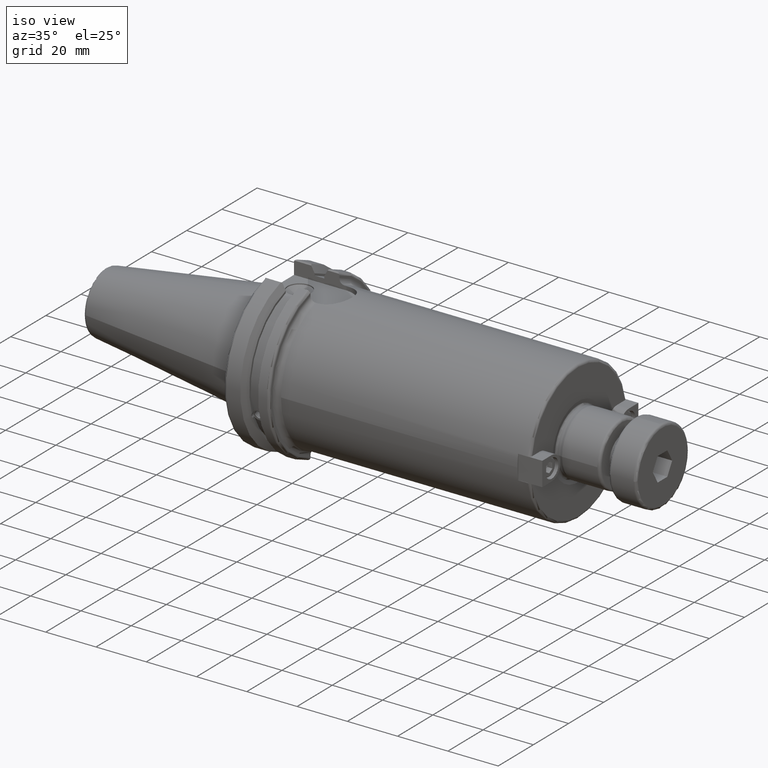
[diagram: clean part render]
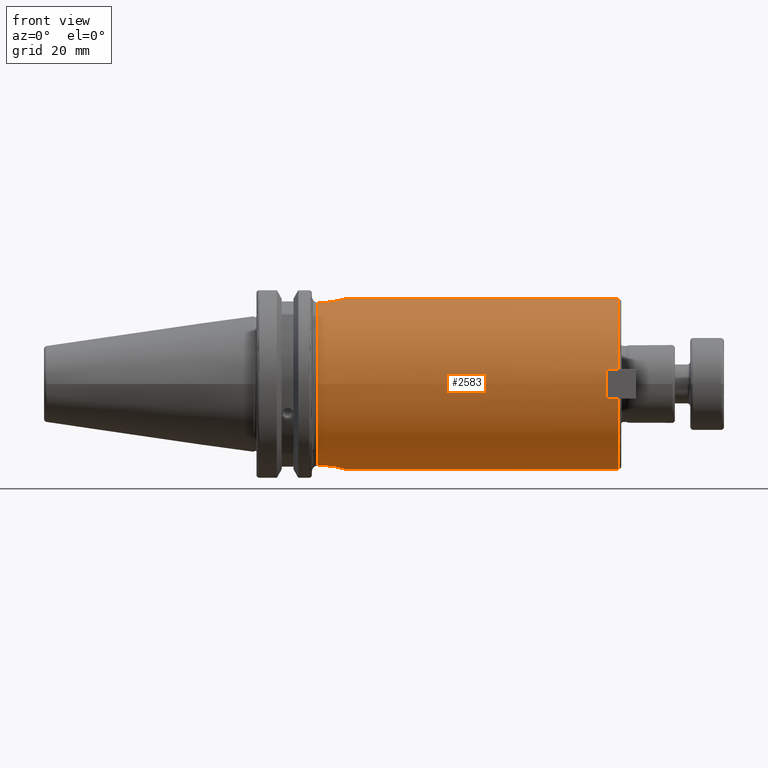
[diagram: tour spotlight — one face highlighted and labeled with its STEP entity id]
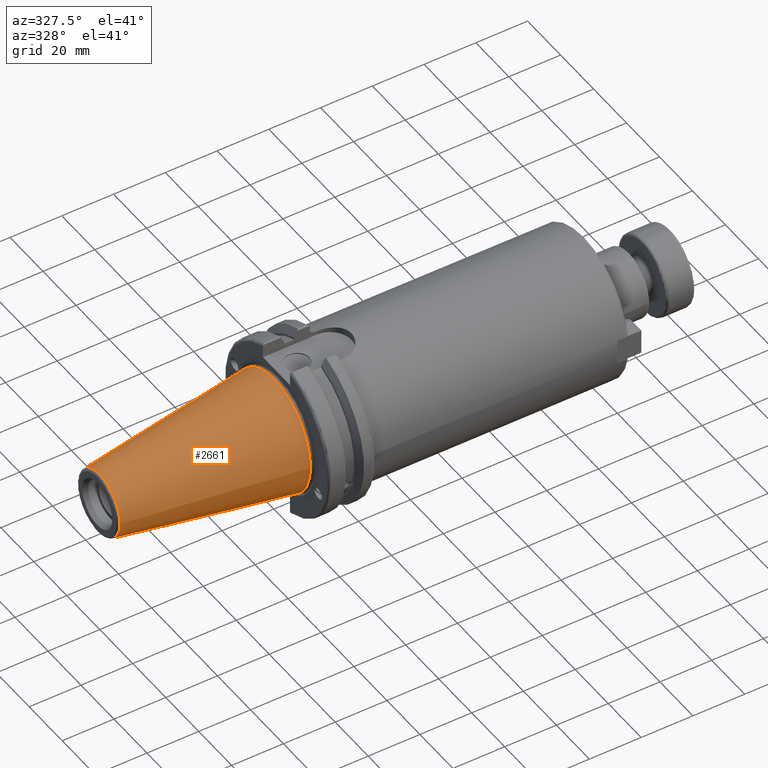
[diagram: tour spotlight — one face highlighted and labeled with its STEP entity id]
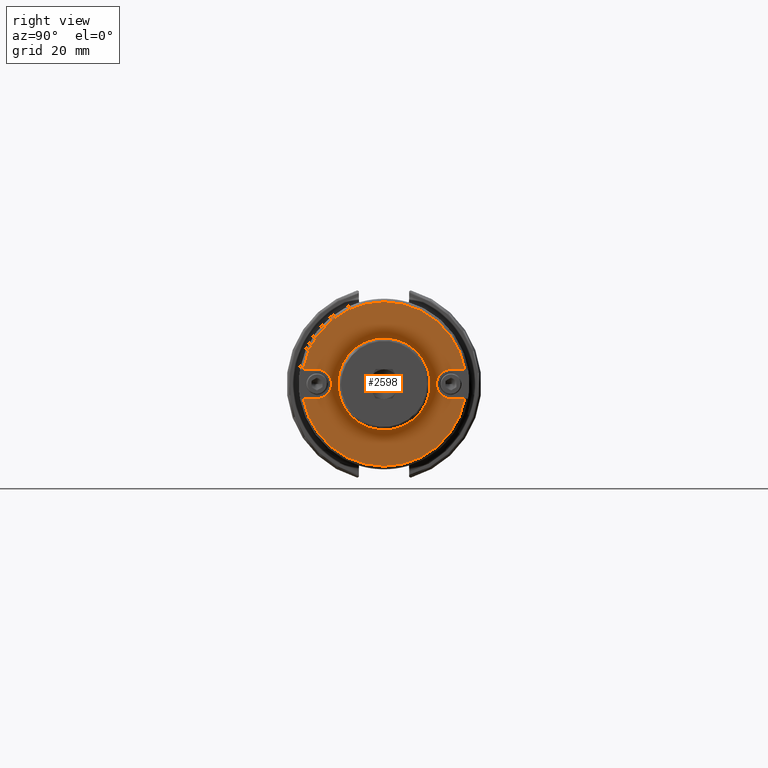
[diagram: tour spotlight — one face highlighted and labeled with its STEP entity id]
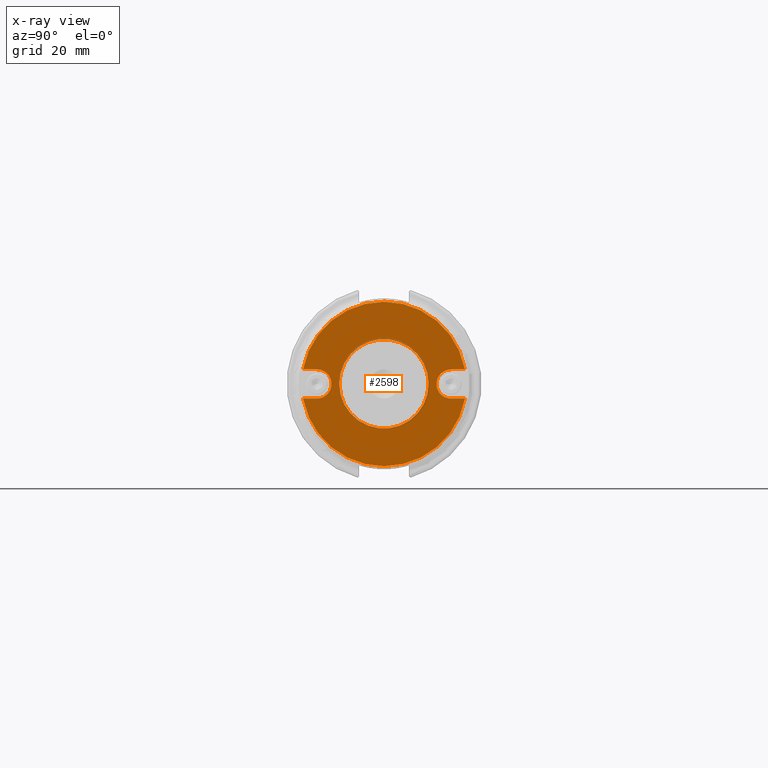
[diagram: x-ray of the same camera — body ghosted, this tour face saturated]
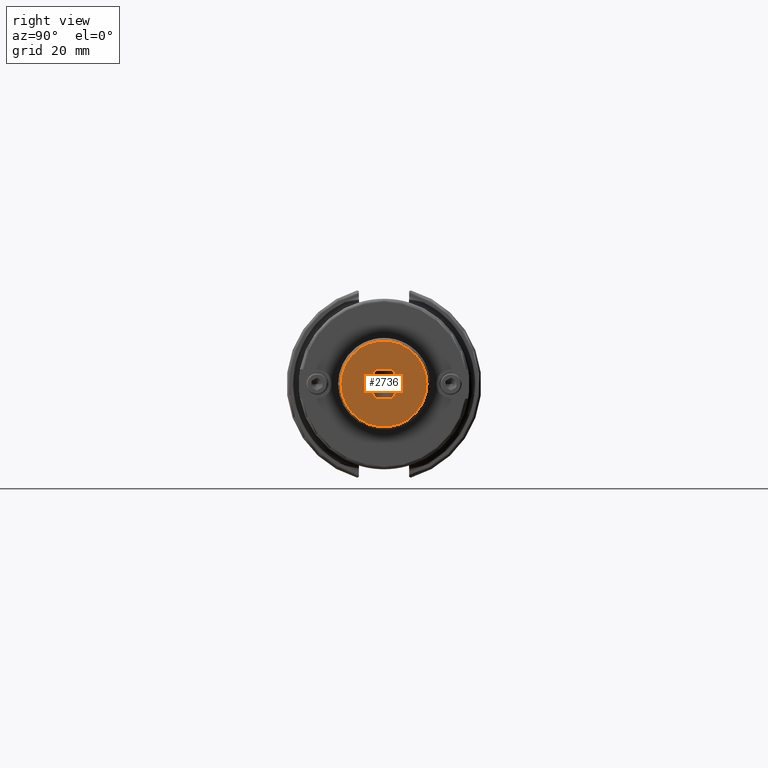
[diagram: tour spotlight — one face highlighted and labeled with its STEP entity id]
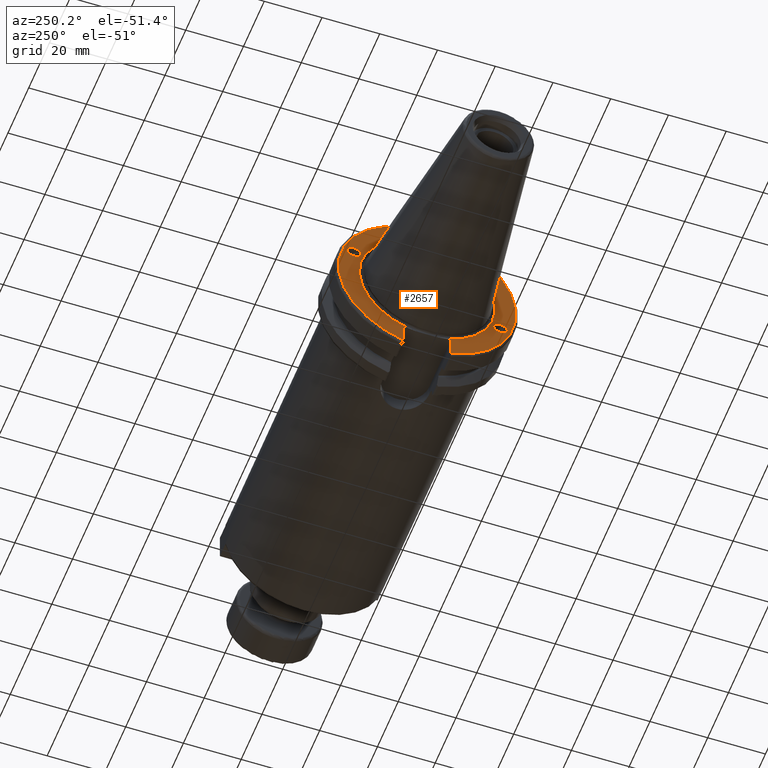
[diagram: tour spotlight — one face highlighted and labeled with its STEP entity id]
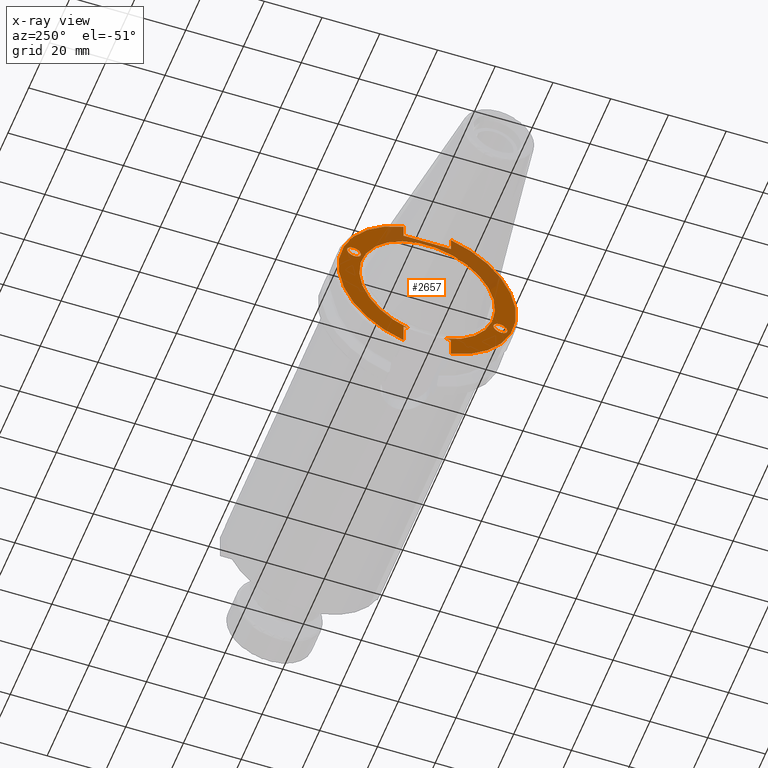
[diagram: x-ray of the same camera — body ghosted, this tour face saturated]
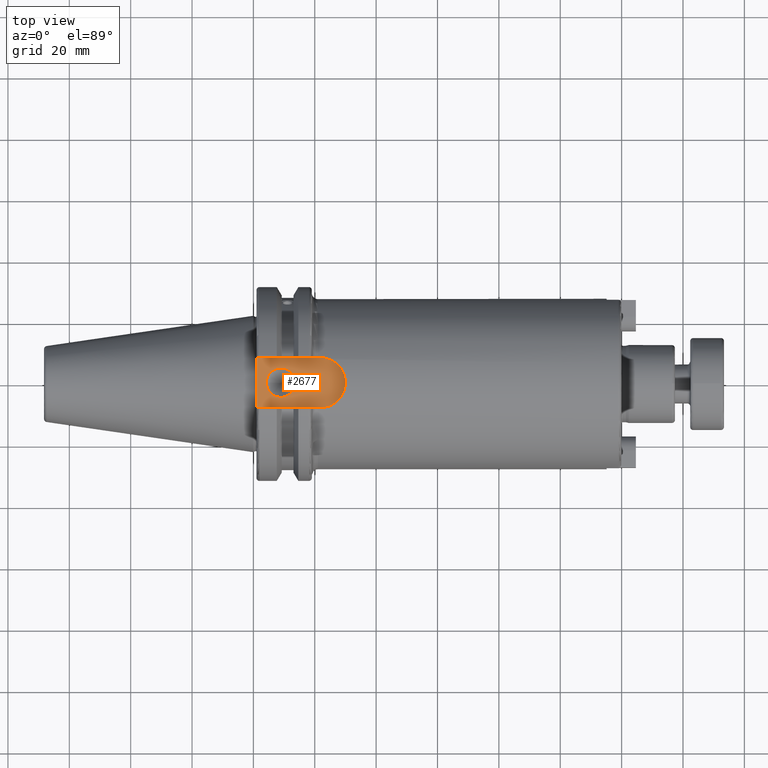
[diagram: tour spotlight — one face highlighted and labeled with its STEP entity id]
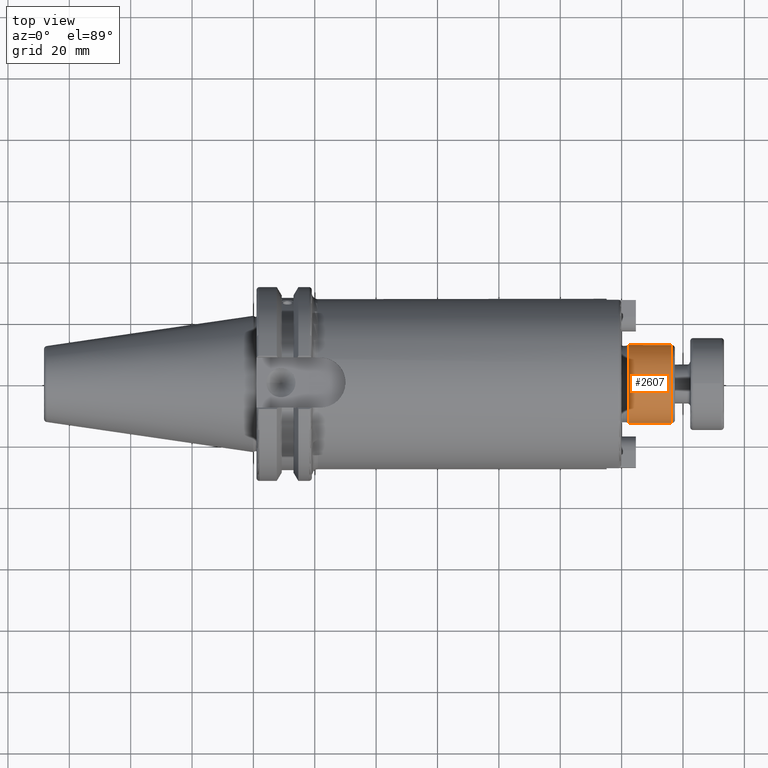
[diagram: tour spotlight — one face highlighted and labeled with its STEP entity id]
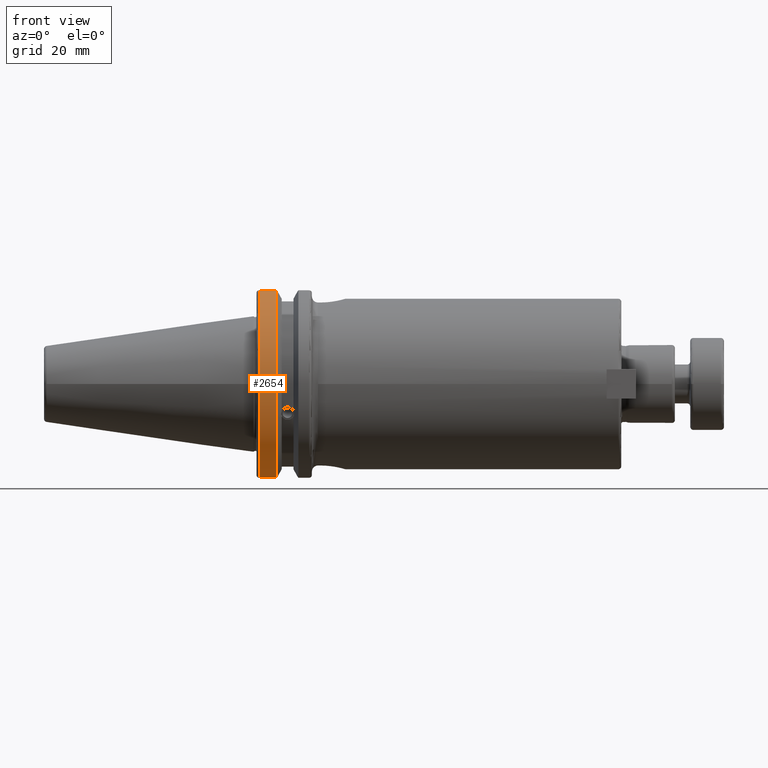
[diagram: tour spotlight — one face highlighted and labeled with its STEP entity id]
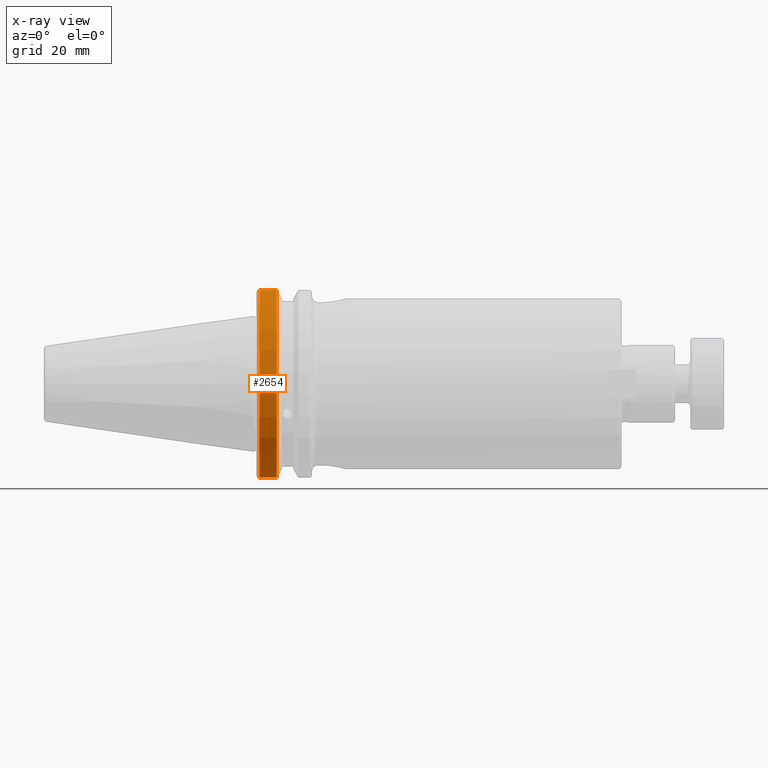
[diagram: x-ray of the same camera — body ghosted, this tour face saturated]
A machine part: a face-by-face anatomy tour. The part has 179 B-rep faces; the first image is the clean iso view, then the 8 largest visible faces are spotlighted one at a time (largest first), each with its STEP entity span.

Face 1 — front view, entity #2583. In plain terms, the highlighted cylindrical surface (bore or boss wall) has radius 27.79 mm, axis along (1, 0, 0).
Definition (entity closure, byte-faithful):
#233=FACE_OUTER_BOUND('',#388,.T.);
#388=EDGE_LOOP('',(#1750,#1751,#1752,#1753,#1754,#1755,#1756,#1757,#1758,
#1759,#1760,#1761,#1762,#1763,#1764,#1765,#1766,#1767,#1768,#1769));
#568=CIRCLE('',#2843,27.79);
#569=CIRCLE('',#2844,27.79);
#570=CIRCLE('',#2845,27.79);
#571=CIRCLE('',#2846,27.79);
#572=CIRCLE('',#2847,27.79);
#573=CIRCLE('',#2848,27.79);
#574=CIRCLE('',#2849,27.79);
#575=CIRCLE('',#2850,27.79);
#712=LINE('',#4018,#880);
#713=LINE('',#4022,#881);
#714=LINE('',#4025,#882);
#715=LINE('',#4027,#883);
#716=LINE('',#4031,#884);
#717=LINE('',#4052,#885);
#718=LINE('',#4057,#886);
#719=LINE('',#4061,#887);
#720=LINE('',#4065,#888);
#880=VECTOR('',#3177,10.);
#881=VECTOR('',#3180,27.79);
#882=VECTOR('',#3183,10.);
#883=VECTOR('',#3184,10.);
#884=VECTOR('',#3187,10.);
#885=VECTOR('',#3188,10.);
#886=VECTOR('',#3193,10.);
#887=VECTOR('',#3196,10.);
#888=VECTOR('',#3199,10.);
#1046=B_SPLINE_CURVE_WITH_KNOTS('',3,(#3992,#3993,#3994,#3995,#3996,#3997,
#3998,#3999,#4000,#4001,#4002,#4003,#4004,#4005,#4006,#4007,#4008,#4009),
 .UNSPECIFIED.,.F.,.F.,(4,2,2,2,2,2,2,2,4),(-2.48404790879586,-2.17349897513636,
-1.86295004147687,-1.5524869979374,-1.24202395439793,-0.931560910858458,
-0.621097867318987,-0.310548933659494,0.),.UNSPECIFIED.);
#1047=B_SPLINE_CURVE_WITH_KNOTS('',3,(#4033,#4034,#4035,#4036,#4037,#4038,
#4039,#4040,#4041,#4042,#4043,#4044,#4045,#4046,#4047,#4048,#4049,#4050),
 .UNSPECIFIED.,.F.,.F.,(4,2,2,2,2,2,2,2,4),(-2.48404790879586,-2.17349897513636,
-1.86295004147687,-1.5524869979374,-1.24202395439793,-0.931560910858458,
-0.621097867318987,-0.310548933659494,0.),.UNSPECIFIED.);
#1088=VERTEX_POINT('',#3990);
#1089=VERTEX_POINT('',#3991);
#1092=VERTEX_POINT('',#4016);
#1093=VERTEX_POINT('',#4017);
#1094=VERTEX_POINT('',#4019);
#1095=VERTEX_POINT('',#4021);
#1096=VERTEX_POINT('',#4023);
#1097=VERTEX_POINT('',#4026);
#1098=VERTEX_POINT('',#4028);
#1099=VERTEX_POINT('',#4030);
#1100=VERTEX_POINT('',#4032);
#1101=VERTEX_POINT('',#4051);
#1102=VERTEX_POINT('',#4054);
#1103=VERTEX_POINT('',#4056);
#1104=VERTEX_POINT('',#4058);
#1105=VERTEX_POINT('',#4060);
#1106=VERTEX_POINT('',#4062);
#1107=VERTEX_POINT('',#4064);
#1350=EDGE_CURVE('',#1088,#1089,#1046,.T.);
#1354=EDGE_CURVE('',#1092,#1093,#712,.T.);
#1355=EDGE_CURVE('',#1093,#1094,#568,.T.);
#1356=EDGE_CURVE('',#1094,#1095,#713,.T.);
#1357=EDGE_CURVE('',#1096,#1095,#569,.T.);
#1358=EDGE_CURVE('',#1096,#1088,#714,.T.);
#1359=EDGE_CURVE('',#1089,#1097,#715,.T.);
#1360=EDGE_CURVE('',#1098,#1097,#570,.T.);
#1361=EDGE_CURVE('',#1098,#1099,#716,.T.);
#1362=EDGE_CURVE('',#1099,#1100,#1047,.T.);
#1363=EDGE_CURVE('',#1100,#1101,#717,.T.);
#1364=EDGE_CURVE('',#1095,#1101,#571,.T.);
#1365=EDGE_CURVE('',#1094,#1102,#572,.T.);
#1366=EDGE_CURVE('',#1102,#1103,#718,.T.);
#1367=EDGE_CURVE('',#1104,#1103,#573,.T.);
#1368=EDGE_CURVE('',#1104,#1105,#719,.T.);
#1369=EDGE_CURVE('',#1105,#1106,#574,.T.);
#1370=EDGE_CURVE('',#1106,#1107,#720,.T.);
#1371=EDGE_CURVE('',#1092,#1107,#575,.T.);
#1750=ORIENTED_EDGE('',*,*,#1354,.T.);
#1751=ORIENTED_EDGE('',*,*,#1355,.T.);
#1752=ORIENTED_EDGE('',*,*,#1356,.T.);
#1753=ORIENTED_EDGE('',*,*,#1357,.F.);
#1754=ORIENTED_EDGE('',*,*,#1358,.T.);
#1755=ORIENTED_EDGE('',*,*,#1350,.T.);
#1756=ORIENTED_EDGE('',*,*,#1359,.T.);
#1757=ORIENTED_EDGE('',*,*,#1360,.F.);
#1758=ORIENTED_EDGE('',*,*,#1361,.T.);
#1759=ORIENTED_EDGE('',*,*,#1362,.T.);
#1760=ORIENTED_EDGE('',*,*,#1363,.T.);
#1761=ORIENTED_EDGE('',*,*,#1364,.F.);
#1762=ORIENTED_EDGE('',*,*,#1356,.F.);
#1763=ORIENTED_EDGE('',*,*,#1365,.T.);
#1764=ORIENTED_EDGE('',*,*,#1366,.T.);
#1765=ORIENTED_EDGE('',*,*,#1367,.F.);
#1766=ORIENTED_EDGE('',*,*,#1368,.T.);
#1767=ORIENTED_EDGE('',*,*,#1369,.T.);
#1768=ORIENTED_EDGE('',*,*,#1370,.T.);
#1769=ORIENTED_EDGE('',*,*,#1371,.F.);
#2539=CYLINDRICAL_SURFACE('',#2842,27.79);
#2583=ADVANCED_FACE('',(#233),#2539,.T.);
#2842=AXIS2_PLACEMENT_3D('',#4015,#3175,#3176);
#2843=AXIS2_PLACEMENT_3D('',#4020,#3178,#3179);
#2844=AXIS2_PLACEMENT_3D('',#4024,#3181,#3182);
#2845=AXIS2_PLACEMENT_3D('',#4029,#3185,#3186);
#2846=AXIS2_PLACEMENT_3D('',#4053,#3189,#3190);
#2847=AXIS2_PLACEMENT_3D('',#4055,#3191,#3192);
#2848=AXIS2_PLACEMENT_3D('',#4059,#3194,#3195);
#2849=AXIS2_PLACEMENT_3D('',#4063,#3197,#3198);
#2850=AXIS2_PLACEMENT_3D('',#4066,#3200,#3201);
#3175=DIRECTION('center_axis',(1.,0.,0.));
#3176=DIRECTION('ref_axis',(0.,1.,0.));
#3177=DIRECTION('',(-1.,0.,0.));
#3178=DIRECTION('center_axis',(-1.,0.,0.));
#3179=DIRECTION('ref_axis',(0.,1.,0.));
#3180=DIRECTION('',(-1.,0.,0.));
#3181=DIRECTION('center_axis',(-1.,0.,0.));
#3182=DIRECTION('ref_axis',(0.,-1.,-1.22464679914735E-16));
#3183=DIRECTION('',(1.,0.,0.));
#3184=DIRECTION('',(-1.,0.,0.));
#3185=DIRECTION('center_axis',(-1.,0.,0.));
#3186=DIRECTION('ref_axis',(0.,1.,0.));
#3187=DIRECTION('',(1.,0.,0.));
#3188=DIRECTION('',(-1.,0.,0.));
#3189=DIRECTION('center_axis',(-1.,0.,0.));
#3190=DIRECTION('ref_axis',(0.,-1.,-1.22464679914735E-16));
#3191=DIRECTION('center_axis',(-1.,0.,0.));
#3192=DIRECTION('ref_axis',(0.,1.,0.));
#3193=DIRECTION('',(1.,0.,0.));
#3194=DIRECTION('center_axis',(1.,0.,0.));
#3195=DIRECTION('ref_axis',(0.,-1.,1.83697019872103E-16));
#3196=DIRECTION('',(-1.,0.,0.));
#3197=DIRECTION('center_axis',(-1.,0.,0.));
#3198=DIRECTION('ref_axis',(0.,1.,0.));
#3199=DIRECTION('',(1.,0.,0.));
#3200=DIRECTION('center_axis',(1.,0.,0.));
#3201=DIRECTION('ref_axis',(0.,-1.,1.83697019872103E-16));
#3990=CARTESIAN_POINT('',(21.81,-8.19,-26.5557526724437));
#3991=CARTESIAN_POINT('',(21.81,8.19,-26.5557526724437));
#3992=CARTESIAN_POINT('Ctrl Pts',(21.81,-8.19,-26.5557526724437));
#3993=CARTESIAN_POINT('Ctrl Pts',(22.8451631121983,-8.19,-26.5557526724437));
#3994=CARTESIAN_POINT('Ctrl Pts',(23.9447923487993,-7.98185829609769,-26.6226123097308));
#3995=CARTESIAN_POINT('Ctrl Pts',(25.9606211014446,-7.14421117880254,-26.8595194937095));
#3996=CARTESIAN_POINT('Ctrl Pts',(26.8774024884575,-6.51500658737815,-27.0256630340214));
#3997=CARTESIAN_POINT('Ctrl Pts',(28.3248064017128,-5.06760267412283,-27.3340606843464));
#3998=CARTESIAN_POINT('Ctrl Pts',(28.9541661371732,-4.15073970749414,-27.4969964420021));
#3999=CARTESIAN_POINT('Ctrl Pts',(29.7919276402387,-2.13461525757678,-27.7264651749869));
#4000=CARTESIAN_POINT('Ctrl Pts',(30.,-1.03487681179824,-27.79));
#4001=CARTESIAN_POINT('Ctrl Pts',(30.,1.03487681179824,-27.79));
#4002=CARTESIAN_POINT('Ctrl Pts',(29.7919276402387,2.13461525757678,-27.7264651749869));
#4003=CARTESIAN_POINT('Ctrl Pts',(28.9541661371732,4.15073970749413,-27.4969964420021));
#4004=CARTESIAN_POINT('Ctrl Pts',(28.3248064017128,5.06760267412282,-27.3340606843464));
#4005=CARTESIAN_POINT('Ctrl Pts',(26.8774024884575,6.51500658737815,-27.0256630340214));
#4006=CARTESIAN_POINT('Ctrl Pts',(25.9606211014446,7.14421117880254,-26.8595194937095));
#4007=CARTESIAN_POINT('Ctrl Pts',(23.9447923487993,7.98185829609769,-26.6226123097308));
#4008=CARTESIAN_POINT('Ctrl Pts',(22.8451631121983,8.19,-26.5557526724437));
#4009=CARTESIAN_POINT('Ctrl Pts',(21.81,8.19,-26.5557526724437));
#4015=CARTESIAN_POINT('Origin',(69.469,0.,0.));
#4016=CARTESIAN_POINT('',(118.888,-27.3793078802222,-4.76));
#4017=CARTESIAN_POINT('',(115.118,-27.3793078802222,-4.76));
#4018=CARTESIAN_POINT('',(69.469,-27.3793078802222,-4.76));
#4019=CARTESIAN_POINT('',(115.118,-27.79,-3.40329345483049E-15));
#4020=CARTESIAN_POINT('Origin',(115.118,0.,0.));
#4021=CARTESIAN_POINT('',(21.05,-27.79,-3.40329345483049E-15));
#4022=CARTESIAN_POINT('',(69.469,-27.79,-3.40329345483049E-15));
#4023=CARTESIAN_POINT('',(21.05,-8.19,-26.5557526724437));
#4024=CARTESIAN_POINT('Origin',(21.05,0.,0.));
#4025=CARTESIAN_POINT('',(69.469,-8.18999999999999,-26.5557526724437));
#4026=CARTESIAN_POINT('',(21.05,8.19,-26.5557526724437));
#4027=CARTESIAN_POINT('',(69.469,8.19000000000001,-26.5557526724437));
#4028=CARTESIAN_POINT('',(21.05,8.19,26.5557526724437));
#4029=CARTESIAN_POINT('Origin',(21.05,0.,0.));
#4030=CARTESIAN_POINT('',(21.81,8.19,26.5557526724437));
#4031=CARTESIAN_POINT('',(69.469,8.19,26.5557526724437));
#4032=CARTESIAN_POINT('',(21.81,-8.19000000000001,26.5557526724437));
#4033=CARTESIAN_POINT('Ctrl Pts',(21.81,8.19,26.5557526724437));
#4034=CARTESIAN_POINT('Ctrl Pts',(22.8451631121983,8.19,26.5557526724437));
#4035=CARTESIAN_POINT('Ctrl Pts',(23.9447923487993,7.98185829609769,26.6226123097308));
#4036=CARTESIAN_POINT('Ctrl Pts',(25.9606211014446,7.14421117880255,26.8595194937095));
#4037=CARTESIAN_POINT('Ctrl Pts',(26.8774024884575,6.51500658737815,27.0256630340214));
#4038=CARTESIAN_POINT('Ctrl Pts',(28.3248064017128,5.06760267412283,27.3340606843464));
#4039=CARTESIAN_POINT('Ctrl Pts',(28.9541661371732,4.15073970749414,27.4969964420021));
#4040=CARTESIAN_POINT('Ctrl Pts',(29.7919276402387,2.13461525757678,27.7264651749869));
#4041=CARTESIAN_POINT('Ctrl Pts',(30.,1.03487681179824,27.79));
#4042=CARTESIAN_POINT('Ctrl Pts',(30.,-1.03487681179823,27.79));
#4043=CARTESIAN_POINT('Ctrl Pts',(29.7919276402387,-2.13461525757677,27.7264651749869));
#4044=CARTESIAN_POINT('Ctrl Pts',(28.9541661371732,-4.15073970749412,27.4969964420021));
#4045=CARTESIAN_POINT('Ctrl Pts',(28.3248064017128,-5.06760267412282,27.3340606843464));
#4046=CARTESIAN_POINT('Ctrl Pts',(26.8774024884575,-6.51500658737814,27.0256630340214));
#4047=CARTESIAN_POINT('Ctrl Pts',(25.9606211014446,-7.14421117880254,26.8595194937095));
#4048=CARTESIAN_POINT('Ctrl Pts',(23.9447923487993,-7.98185829609768,26.6226123097308));
#4049=CARTESIAN_POINT('Ctrl Pts',(22.8451631121983,-8.18999999999999,26.5557526724437));
#4050=CARTESIAN_POINT('Ctrl Pts',(21.81,-8.18999999999999,26.5557526724437));
#4051=CARTESIAN_POINT('',(21.05,-8.19,26.5557526724437));
#4052=CARTESIAN_POINT('',(69.469,-8.19,26.5557526724437));
#4053=CARTESIAN_POINT('Origin',(21.05,0.,0.));
#4054=CARTESIAN_POINT('',(115.118,-27.3793078802222,4.76));
#4055=CARTESIAN_POINT('Origin',(115.118,0.,0.));
#4056=CARTESIAN_POINT('',(118.888,-27.3793078802222,4.76));
#4057=CARTESIAN_POINT('',(69.469,-27.3793078802222,4.76));
#4058=CARTESIAN_POINT('',(118.888,27.3793078802222,4.76));
#4059=CARTESIAN_POINT('Origin',(118.888,0.,0.));
#4060=CARTESIAN_POINT('',(115.118,27.3793078802222,4.76));
#4061=CARTESIAN_POINT('',(69.469,27.3793078802222,4.76));
#4062=CARTESIAN_POINT('',(115.118,27.3793078802222,-4.76));
#4063=CARTESIAN_POINT('Origin',(115.118,0.,0.));
#4064=CARTESIAN_POINT('',(118.888,27.3793078802222,-4.76));
#4065=CARTESIAN_POINT('',(69.469,27.3793078802222,-4.76));
#4066=CARTESIAN_POINT('Origin',(118.888,0.,0.));

Face 2 — auxiliary view, entity #2661. In plain terms, the highlighted conical surface has half-angle 8.297 deg.
Definition (entity closure, byte-faithful):
#124=CONICAL_SURFACE('',#3021,17.2484375,0.144812498238939);
#311=FACE_OUTER_BOUND('',#481,.T.);
#481=EDGE_LOOP('',(#2188,#2189,#2190,#2191,#2192));
#646=CIRCLE('',#3015,12.3966635780937);
#647=CIRCLE('',#3016,12.3966635780937);
#651=CIRCLE('',#3022,22.225);
#803=LINE('',#4940,#971);
#971=VECTOR('',#3628,17.2484375);
#1260=VERTEX_POINT('',#4927);
#1261=VERTEX_POINT('',#4928);
#1264=VERTEX_POINT('',#4938);
#1596=EDGE_CURVE('',#1260,#1261,#646,.T.);
#1597=EDGE_CURVE('',#1261,#1260,#647,.T.);
#1601=EDGE_CURVE('',#1264,#1264,#651,.T.);
#1602=EDGE_CURVE('',#1264,#1261,#803,.T.);
#2188=ORIENTED_EDGE('',*,*,#1601,.F.);
#2189=ORIENTED_EDGE('',*,*,#1602,.T.);
#2190=ORIENTED_EDGE('',*,*,#1596,.F.);
#2191=ORIENTED_EDGE('',*,*,#1597,.F.);
#2192=ORIENTED_EDGE('',*,*,#1602,.F.);
#2661=ADVANCED_FACE('',(#311),#124,.T.);
#3015=AXIS2_PLACEMENT_3D('',#4929,#3612,#3613);
#3016=AXIS2_PLACEMENT_3D('',#4930,#3614,#3615);
#3021=AXIS2_PLACEMENT_3D('',#4937,#3624,#3625);
#3022=AXIS2_PLACEMENT_3D('',#4939,#3626,#3627);
#3612=DIRECTION('center_axis',(-1.,0.,0.));
#3613=DIRECTION('ref_axis',(0.,-1.,3.06161699786838E-17));
#3614=DIRECTION('center_axis',(-1.,0.,0.));
#3615=DIRECTION('ref_axis',(0.,-1.,3.06161699786838E-17));
#3624=DIRECTION('center_axis',(1.,0.,0.));
#3625=DIRECTION('ref_axis',(0.,1.,0.));
#3626=DIRECTION('center_axis',(1.,0.,0.));
#3627=DIRECTION('ref_axis',(0.,0.,-1.));
#3628=DIRECTION('',(-0.989532981063282,0.144306893071729,1.76724974695192E-17));
#4927=CARTESIAN_POINT('',(-67.3943068930717,-1.5181534371019E-15,12.3966635780937));
#4928=CARTESIAN_POINT('',(-67.3943068930718,-12.3966635780937,-1.5181534371019E-15));
#4929=CARTESIAN_POINT('Origin',(-67.3943068930717,0.,-1.89769179637738E-15));
#4930=CARTESIAN_POINT('Origin',(-67.3943068930717,0.,-1.89769179637738E-15));
#4937=CARTESIAN_POINT('Origin',(-34.125,0.,0.));
#4938=CARTESIAN_POINT('',(0.,-22.225,-2.72177751110499E-15));
#4939=CARTESIAN_POINT('Origin',(0.,0.,0.));
#4940=CARTESIAN_POINT('',(-34.125,-17.2484375,-2.11232437746682E-15));

Face 3 — right view, entity #2598. An x-ray twin of the same camera follows (body ghosted, this face saturated) — the face is partly hidden behind the body. In plain terms, the highlighted planar face has unit normal (1, 0, 0).
Definition (entity closure, byte-faithful):
#137=FACE_BOUND('',#406,.T.);
#166=PLANE('',#2875);
#248=FACE_OUTER_BOUND('',#405,.T.);
#405=EDGE_LOOP('',(#1831,#1832,#1833,#1834,#1835,#1836,#1837,#1838));
#406=EDGE_LOOP('',(#1839));
#580=CIRCLE('',#2861,4.76);
#581=CIRCLE('',#2864,26.79);
#584=CIRCLE('',#2870,4.76);
#586=CIRCLE('',#2876,26.79);
#587=CIRCLE('',#2877,14.55);
#726=LINE('',#4085,#894);
#730=LINE('',#4119,#898);
#736=LINE('',#4164,#904);
#737=LINE('',#4166,#905);
#894=VECTOR('',#3219,10.);
#898=VECTOR('',#3235,10.);
#904=VECTOR('',#3261,10.);
#905=VECTOR('',#3264,10.);
#1113=VERTEX_POINT('',#4082);
#1114=VERTEX_POINT('',#4084);
#1117=VERTEX_POINT('',#4104);
#1118=VERTEX_POINT('',#4108);
#1119=VERTEX_POINT('',#4121);
#1123=VERTEX_POINT('',#4143);
#1124=VERTEX_POINT('',#4144);
#1127=VERTEX_POINT('',#4152);
#1128=VERTEX_POINT('',#4171);
#1380=EDGE_CURVE('',#1114,#1113,#726,.T.);
#1385=EDGE_CURVE('',#1113,#1117,#580,.T.);
#1388=EDGE_CURVE('',#1117,#1118,#730,.T.);
#1389=EDGE_CURVE('',#1114,#1119,#581,.T.);
#1395=EDGE_CURVE('',#1123,#1124,#584,.T.);
#1401=EDGE_CURVE('',#1127,#1123,#736,.T.);
#1402=EDGE_CURVE('',#1124,#1119,#737,.T.);
#1404=EDGE_CURVE('',#1127,#1118,#586,.T.);
#1405=EDGE_CURVE('',#1128,#1128,#587,.T.);
#1831=ORIENTED_EDGE('',*,*,#1388,.T.);
#1832=ORIENTED_EDGE('',*,*,#1404,.F.);
#1833=ORIENTED_EDGE('',*,*,#1401,.T.);
#1834=ORIENTED_EDGE('',*,*,#1395,.T.);
#1835=ORIENTED_EDGE('',*,*,#1402,.T.);
#1836=ORIENTED_EDGE('',*,*,#1389,.F.);
#1837=ORIENTED_EDGE('',*,*,#1380,.T.);
#1838=ORIENTED_EDGE('',*,*,#1385,.T.);
#1839=ORIENTED_EDGE('',*,*,#1405,.F.);
#2598=ADVANCED_FACE('',(#248,#137),#166,.T.);
#2861=AXIS2_PLACEMENT_3D('',#4105,#3230,#3231);
#2864=AXIS2_PLACEMENT_3D('',#4122,#3238,#3239);
#2870=AXIS2_PLACEMENT_3D('',#4145,#3252,#3253);
#2875=AXIS2_PLACEMENT_3D('',#4169,#3268,#3269);
#2876=AXIS2_PLACEMENT_3D('',#4170,#3270,#3271);
#2877=AXIS2_PLACEMENT_3D('',#4172,#3272,#3273);
#3219=DIRECTION('',(0.,1.,8.05011381154578E-17));
#3230=DIRECTION('center_axis',(-1.,0.,0.));
#3231=DIRECTION('ref_axis',(0.,-1.22464679914735E-16,-1.));
#3235=DIRECTION('',(0.,-1.,2.23947588929832E-16));
#3238=DIRECTION('center_axis',(-1.,0.,0.));
#3239=DIRECTION('ref_axis',(0.,-1.,1.83697019872103E-16));
#3252=DIRECTION('center_axis',(-1.,0.,0.));
#3253=DIRECTION('ref_axis',(0.,0.,1.));
#3261=DIRECTION('',(0.,-1.,-2.02965818030193E-16));
#3264=DIRECTION('',(0.,1.,-1.01482909015097E-16));
#3268=DIRECTION('center_axis',(1.,0.,0.));
#3269=DIRECTION('ref_axis',(0.,0.,-1.));
#3270=DIRECTION('center_axis',(-1.,0.,0.));
#3271=DIRECTION('ref_axis',(0.,-1.,1.83697019872103E-16));
#3272=DIRECTION('center_axis',(1.,0.,0.));
#3273=DIRECTION('ref_axis',(0.,0.,-1.));
#4082=CARTESIAN_POINT('',(119.888,-21.85,4.76));
#4084=CARTESIAN_POINT('',(119.888,-26.3637345609456,4.76));
#4085=CARTESIAN_POINT('',(119.888,-9.12,4.76));
#4104=CARTESIAN_POINT('',(119.888,-21.85,-4.76));
#4105=CARTESIAN_POINT('Origin',(119.888,-21.85,2.67585325613697E-15));
#4108=CARTESIAN_POINT('',(119.888,-26.3637345609456,-4.76));
#4119=CARTESIAN_POINT('',(119.888,-3.65,-4.76));
#4121=CARTESIAN_POINT('',(119.888,26.3637345609456,4.76));
#4122=CARTESIAN_POINT('Origin',(119.888,0.,0.));
#4143=CARTESIAN_POINT('',(119.888,21.85,-4.76));
#4144=CARTESIAN_POINT('',(119.888,21.85,4.76));
#4145=CARTESIAN_POINT('Origin',(119.888,21.85,0.));
#4152=CARTESIAN_POINT('',(119.888,26.3637345609456,-4.76));
#4164=CARTESIAN_POINT('',(119.888,23.67,-4.76));
#4166=CARTESIAN_POINT('',(119.888,18.2,4.76));
#4169=CARTESIAN_POINT('Origin',(119.888,14.55,0.));
#4170=CARTESIAN_POINT('Origin',(119.888,0.,0.));
#4171=CARTESIAN_POINT('',(119.888,-14.55,-1.7818610927594E-15));
#4172=CARTESIAN_POINT('Origin',(119.888,0.,0.));

Face 4 — right view, entity #2736. In plain terms, the highlighted planar face has unit normal (1, 0, -0).
Definition (entity closure, byte-faithful):
#159=FACE_BOUND('',#566,.T.);
#231=PLANE('',#3158);
#386=FACE_OUTER_BOUND('',#565,.T.);
#565=EDGE_LOOP('',(#2531));
#566=EDGE_LOOP('',(#2532,#2533,#2534,#2535,#2536,#2537));
#709=CIRCLE('',#3157,14.);
#863=LINE('',#5209,#1031);
#866=LINE('',#5214,#1034);
#868=LINE('',#5218,#1036);
#870=LINE('',#5222,#1038);
#872=LINE('',#5226,#1040);
#874=LINE('',#5229,#1042);
#1031=VECTOR('',#3902,10.);
#1034=VECTOR('',#3907,10.);
#1036=VECTOR('',#3911,10.);
#1038=VECTOR('',#3915,10.);
#1040=VECTOR('',#3919,10.);
#1042=VECTOR('',#3923,10.);
#1332=VERTEX_POINT('',#5207);
#1333=VERTEX_POINT('',#5208);
#1334=VERTEX_POINT('',#5213);
#1335=VERTEX_POINT('',#5217);
#1336=VERTEX_POINT('',#5221);
#1337=VERTEX_POINT('',#5225);
#1349=VERTEX_POINT('',#5265);
#1716=EDGE_CURVE('',#1332,#1333,#863,.T.);
#1719=EDGE_CURVE('',#1334,#1332,#866,.T.);
#1721=EDGE_CURVE('',#1335,#1334,#868,.T.);
#1723=EDGE_CURVE('',#1336,#1335,#870,.T.);
#1725=EDGE_CURVE('',#1337,#1336,#872,.T.);
#1727=EDGE_CURVE('',#1333,#1337,#874,.T.);
#1745=EDGE_CURVE('',#1349,#1349,#709,.T.);
#2531=ORIENTED_EDGE('',*,*,#1745,.F.);
#2532=ORIENTED_EDGE('',*,*,#1716,.T.);
#2533=ORIENTED_EDGE('',*,*,#1727,.T.);
#2534=ORIENTED_EDGE('',*,*,#1725,.T.);
#2535=ORIENTED_EDGE('',*,*,#1723,.T.);
#2536=ORIENTED_EDGE('',*,*,#1721,.T.);
#2537=ORIENTED_EDGE('',*,*,#1719,.T.);
#2736=ADVANCED_FACE('',(#386,#159),#231,.T.);
#3157=AXIS2_PLACEMENT_3D('',#5267,#3971,#3972);
#3158=AXIS2_PLACEMENT_3D('',#5268,#3973,#3974);
#3902=DIRECTION('',(0.,0.866025403784439,0.499999999999999));
#3907=DIRECTION('',(0.,0.866025403784438,-0.500000000000001));
#3911=DIRECTION('',(0.,-7.06600462188186E-16,-1.));
#3915=DIRECTION('',(0.,-0.866025403784439,-0.5));
#3919=DIRECTION('',(0.,-0.866025403784438,0.500000000000001));
#3923=DIRECTION('',(0.,1.21131507803689E-15,1.));
#3971=DIRECTION('center_axis',(1.,0.,0.));
#3972=DIRECTION('ref_axis',(0.,-1.,1.83697019872103E-16));
#3973=DIRECTION('center_axis',(-1.,0.,0.));
#3974=DIRECTION('ref_axis',(0.,0.,1.));
#5207=CARTESIAN_POINT('',(0.,-8.82348337528734E-15,-5.49926131403118));
#5208=CARTESIAN_POINT('',(0.,4.76249999999999,-2.7496306570156));
#5209=CARTESIAN_POINT('',(0.,6.815625,-1.56425838558565));
#5213=CARTESIAN_POINT('',(0.,-4.7625,-2.74963065701559));
#5214=CARTESIAN_POINT('',(0.,2.05312499999999,-6.68463358546114));
#5217=CARTESIAN_POINT('',(0.,-4.7625,2.7496306570156));
#5218=CARTESIAN_POINT('',(0.,-4.7625,1.3748153285078));
#5221=CARTESIAN_POINT('',(0.,-6.68923485257748E-16,5.49926131403119));
#5222=CARTESIAN_POINT('',(0.,4.434375,8.05944891396893));
#5225=CARTESIAN_POINT('',(0.,4.7625,2.74963065701559));
#5226=CARTESIAN_POINT('',(0.,9.196875,0.189443057077837));
#5229=CARTESIAN_POINT('',(0.,4.7625,-1.37481532850779));
#5265=CARTESIAN_POINT('',(0.,-1.71450551880629E-15,14.));
#5267=CARTESIAN_POINT('Origin',(0.,0.,0.));
#5268=CARTESIAN_POINT('Origin',(0.,15.,0.));

Face 5 — auxiliary view, entity #2657. An x-ray twin of the same camera follows (body ghosted, this face saturated) — the face is partly hidden behind the body. In plain terms, the highlighted planar face has unit normal (-1, 0, 0).
Definition (entity closure, byte-faithful):
#86=ELLIPSE('',#2944,2.4415491775229,1.99999999999999);
#95=ELLIPSE('',#2988,2.4415491775229,1.99999999999999);
#147=FACE_BOUND('',#475,.T.);
#148=FACE_BOUND('',#476,.T.);
#186=PLANE('',#3011);
#307=FACE_OUTER_BOUND('',#474,.T.);
#474=EDGE_LOOP('',(#2165,#2166,#2167,#2168,#2169,#2170,#2171,#2172,#2173,
#2174));
#475=EDGE_LOOP('',(#2175));
#476=EDGE_LOOP('',(#2176));
#641=CIRCLE('',#3003,30.75);
#644=CIRCLE('',#3010,30.75);
#645=CIRCLE('',#3012,23.5);
#783=LINE('',#4763,#951);
#786=LINE('',#4813,#954);
#794=LINE('',#4849,#962);
#798=LINE('',#4917,#966);
#799=LINE('',#4918,#967);
#800=LINE('',#4920,#968);
#801=LINE('',#4923,#969);
#951=VECTOR('',#3556,10.);
#954=VECTOR('',#3565,10.);
#962=VECTOR('',#3575,10.);
#966=VECTOR('',#3601,10.);
#967=VECTOR('',#3602,10.);
#968=VECTOR('',#3603,10.);
#969=VECTOR('',#3606,10.);
#1181=VERTEX_POINT('',#4503);
#1222=VERTEX_POINT('',#4706);
#1231=VERTEX_POINT('',#4760);
#1232=VERTEX_POINT('',#4762);
#1238=VERTEX_POINT('',#4810);
#1239=VERTEX_POINT('',#4812);
#1247=VERTEX_POINT('',#4841);
#1248=VERTEX_POINT('',#4848);
#1256=VERTEX_POINT('',#4907);
#1257=VERTEX_POINT('',#4916);
#1258=VERTEX_POINT('',#4919);
#1259=VERTEX_POINT('',#4921);
#1481=EDGE_CURVE('',#1181,#1181,#86,.T.);
#1538=EDGE_CURVE('',#1222,#1222,#95,.T.);
#1552=EDGE_CURVE('',#1232,#1231,#783,.T.);
#1562=EDGE_CURVE('',#1239,#1238,#786,.T.);
#1574=EDGE_CURVE('',#1248,#1247,#794,.T.);
#1579=EDGE_CURVE('',#1239,#1247,#641,.T.);
#1588=EDGE_CURVE('',#1232,#1256,#644,.T.);
#1590=EDGE_CURVE('',#1238,#1257,#798,.T.);
#1591=EDGE_CURVE('',#1257,#1256,#799,.T.);
#1592=EDGE_CURVE('',#1231,#1258,#800,.T.);
#1593=EDGE_CURVE('',#1258,#1259,#645,.T.);
#1594=EDGE_CURVE('',#1259,#1248,#801,.T.);
#2165=ORIENTED_EDGE('',*,*,#1574,.T.);
#2166=ORIENTED_EDGE('',*,*,#1579,.F.);
#2167=ORIENTED_EDGE('',*,*,#1562,.T.);
#2168=ORIENTED_EDGE('',*,*,#1590,.T.);
#2169=ORIENTED_EDGE('',*,*,#1591,.T.);
#2170=ORIENTED_EDGE('',*,*,#1588,.F.);
#2171=ORIENTED_EDGE('',*,*,#1552,.T.);
#2172=ORIENTED_EDGE('',*,*,#1592,.T.);
#2173=ORIENTED_EDGE('',*,*,#1593,.T.);
#2174=ORIENTED_EDGE('',*,*,#1594,.T.);
#2175=ORIENTED_EDGE('',*,*,#1481,.T.);
#2176=ORIENTED_EDGE('',*,*,#1538,.T.);
#2657=ADVANCED_FACE('',(#307,#147,#148),#186,.T.);
#2944=AXIS2_PLACEMENT_3D('',#4505,#3429,#3430);
#2988=AXIS2_PLACEMENT_3D('',#4708,#3533,#3534);
#3003=AXIS2_PLACEMENT_3D('',#4871,#3581,#3582);
#3010=AXIS2_PLACEMENT_3D('',#4908,#3597,#3598);
#3011=AXIS2_PLACEMENT_3D('',#4915,#3599,#3600);
#3012=AXIS2_PLACEMENT_3D('',#4922,#3604,#3605);
#3429=DIRECTION('center_axis',(1.,0.,0.));
#3430=DIRECTION('ref_axis',(0.,-0.939692620785908,-0.342020143325669));
#3533=DIRECTION('center_axis',(1.,0.,0.));
#3534=DIRECTION('ref_axis',(0.,0.939692620785908,0.342020143325669));
#3556=DIRECTION('',(0.,0.,1.));
#3565=DIRECTION('',(0.,0.,-1.));
#3575=DIRECTION('',(0.,0.,-1.));
#3581=DIRECTION('center_axis',(1.,0.,0.));
#3582=DIRECTION('ref_axis',(0.,-1.,1.60812264967664E-16));
#3597=DIRECTION('center_axis',(1.,0.,0.));
#3598=DIRECTION('ref_axis',(0.,1.,1.60812264967664E-16));
#3599=DIRECTION('center_axis',(-1.,0.,0.));
#3600=DIRECTION('ref_axis',(0.,0.,1.));
#3601=DIRECTION('',(0.,1.,0.));
#3602=DIRECTION('',(0.,0.,1.));
#3603=DIRECTION('',(0.,-1.,0.));
#3604=DIRECTION('center_axis',(1.,0.,0.));
#3605=DIRECTION('ref_axis',(0.,0.,-1.));
#3606=DIRECTION('',(0.,-1.,0.));
#4503=CARTESIAN_POINT('',(1.,-23.0773950158154,-8.39948487016));
#4505=CARTESIAN_POINT('Origin',(1.,-25.3717007612195,-9.23454386979305));
#4706=CARTESIAN_POINT('',(1.,23.0773950158154,8.39948487016001));
#4708=CARTESIAN_POINT('Origin',(1.,25.3717007612195,9.23454386979306));
#4760=CARTESIAN_POINT('',(1.,8.19,-22.6));
#4762=CARTESIAN_POINT('',(1.,8.18999999999999,-29.6392712461019));
#4763=CARTESIAN_POINT('',(1.,8.19,-11.3));
#4810=CARTESIAN_POINT('',(1.00000000000001,-8.19000000000001,25.));
#4812=CARTESIAN_POINT('',(1.,-8.18999999999999,29.6392712461019));
#4813=CARTESIAN_POINT('',(1.,-8.19000000000001,12.5));
#4841=CARTESIAN_POINT('',(1.,-8.19,-29.6392712461019));
#4848=CARTESIAN_POINT('',(1.,-8.19,-22.6));
#4849=CARTESIAN_POINT('',(1.,-8.19,-11.3));
#4871=CARTESIAN_POINT('Origin',(1.,0.,0.));
#4907=CARTESIAN_POINT('',(1.,8.19,29.6392712461019));
#4908=CARTESIAN_POINT('Origin',(1.,0.,0.));
#4915=CARTESIAN_POINT('Origin',(1.,31.75,0.));
#4916=CARTESIAN_POINT('',(0.999999999999996,8.19,25.));
#4917=CARTESIAN_POINT('',(1.,15.875,25.));
#4918=CARTESIAN_POINT('',(1.,8.19,12.5));
#4919=CARTESIAN_POINT('',(0.999999999999997,6.4412731660752,-22.6));
#4920=CARTESIAN_POINT('',(1.,15.875,-22.6));
#4921=CARTESIAN_POINT('',(1.,-6.44127316607517,-22.6));
#4922=CARTESIAN_POINT('Origin',(1.,0.,0.));
#4923=CARTESIAN_POINT('',(1.,15.875,-22.6));

Face 6 — top view, entity #2677. In plain terms, the highlighted planar face has unit normal (0, 0, 1).
Definition (entity closure, byte-faithful):
#150=FACE_BOUND('',#498,.T.);
#197=PLANE('',#3044);
#327=FACE_OUTER_BOUND('',#497,.T.);
#497=EDGE_LOOP('',(#2272,#2273,#2274,#2275));
#498=EDGE_LOOP('',(#2276));
#576=CIRCLE('',#2852,8.19);
#654=CIRCLE('',#3036,4.7625);
#785=LINE('',#4811,#953);
#798=LINE('',#4917,#966);
#810=LINE('',#4964,#978);
#953=VECTOR('',#3564,10.);
#966=VECTOR('',#3601,10.);
#978=VECTOR('',#3639,10.);
#1108=VERTEX_POINT('',#4068);
#1109=VERTEX_POINT('',#4070);
#1238=VERTEX_POINT('',#4810);
#1257=VERTEX_POINT('',#4916);
#1274=VERTEX_POINT('',#4987);
#1373=EDGE_CURVE('',#1109,#1108,#576,.T.);
#1561=EDGE_CURVE('',#1238,#1109,#785,.T.);
#1590=EDGE_CURVE('',#1238,#1257,#798,.T.);
#1612=EDGE_CURVE('',#1108,#1257,#810,.T.);
#1621=EDGE_CURVE('',#1274,#1274,#654,.T.);
#2272=ORIENTED_EDGE('',*,*,#1590,.F.);
#2273=ORIENTED_EDGE('',*,*,#1561,.T.);
#2274=ORIENTED_EDGE('',*,*,#1373,.T.);
#2275=ORIENTED_EDGE('',*,*,#1612,.T.);
#2276=ORIENTED_EDGE('',*,*,#1621,.T.);
#2677=ADVANCED_FACE('',(#327,#150),#197,.T.);
#2852=AXIS2_PLACEMENT_3D('',#4071,#3205,#3206);
#3036=AXIS2_PLACEMENT_3D('',#4988,#3667,#3668);
#3044=AXIS2_PLACEMENT_3D('',#4997,#3684,#3685);
#3205=DIRECTION('center_axis',(0.,0.,1.));
#3206=DIRECTION('ref_axis',(1.08446693492079E-15,-1.,0.));
#3564=DIRECTION('',(1.,1.60051373083876E-16,0.));
#3601=DIRECTION('',(0.,1.,0.));
#3639=DIRECTION('',(-1.,-1.06700915389251E-16,0.));
#3667=DIRECTION('center_axis',(0.,0.,-1.));
#3668=DIRECTION('ref_axis',(1.,0.,0.));
#3684=DIRECTION('center_axis',(0.,0.,1.));
#3685=DIRECTION('ref_axis',(1.,0.,0.));
#4068=CARTESIAN_POINT('',(21.81,8.19,25.));
#4070=CARTESIAN_POINT('',(21.81,-8.19000000000001,25.));
#4071=CARTESIAN_POINT('Origin',(21.81,3.78117769356553E-15,25.));
#4810=CARTESIAN_POINT('',(1.00000000000001,-8.19000000000001,25.));
#4811=CARTESIAN_POINT('',(1.00000000000001,-8.19000000000001,25.));
#4916=CARTESIAN_POINT('',(0.999999999999996,8.19,25.));
#4917=CARTESIAN_POINT('',(1.,15.875,25.));
#4964=CARTESIAN_POINT('',(21.81,8.19,25.));
#4987=CARTESIAN_POINT('',(4.1966,-5.83238038093927E-16,25.));
#4988=CARTESIAN_POINT('Origin',(8.9591,0.,25.));
#4997=CARTESIAN_POINT('Origin',(14.62,0.,25.));

Face 7 — top view, entity #2607. In plain terms, the highlighted cylindrical surface (bore or boss wall) has radius 12.7 mm, axis along (1, 0, 0).
Definition (entity closure, byte-faithful):
#257=FACE_OUTER_BOUND('',#418,.T.);
#418=EDGE_LOOP('',(#1879,#1880,#1881,#1882,#1883));
#599=CIRCLE('',#2897,12.7);
#600=CIRCLE('',#2898,12.7);
#601=CIRCLE('',#2900,12.7);
#744=LINE('',#4289,#912);
#912=VECTOR('',#3323,12.7);
#1143=VERTEX_POINT('',#4282);
#1144=VERTEX_POINT('',#4284);
#1145=VERTEX_POINT('',#4288);
#1426=EDGE_CURVE('',#1143,#1144,#599,.T.);
#1427=EDGE_CURVE('',#1144,#1143,#600,.T.);
#1428=EDGE_CURVE('',#1144,#1145,#744,.T.);
#1429=EDGE_CURVE('',#1145,#1145,#601,.T.);
#1879=ORIENTED_EDGE('',*,*,#1427,.F.);
#1880=ORIENTED_EDGE('',*,*,#1428,.T.);
#1881=ORIENTED_EDGE('',*,*,#1429,.T.);
#1882=ORIENTED_EDGE('',*,*,#1428,.F.);
#1883=ORIENTED_EDGE('',*,*,#1426,.F.);
#2548=CYLINDRICAL_SURFACE('',#2899,12.7);
#2607=ADVANCED_FACE('',(#257),#2548,.T.);
#2897=AXIS2_PLACEMENT_3D('',#4285,#3317,#3318);
#2898=AXIS2_PLACEMENT_3D('',#4286,#3319,#3320);
#2899=AXIS2_PLACEMENT_3D('',#4287,#3321,#3322);
#2900=AXIS2_PLACEMENT_3D('',#4290,#3324,#3325);
#3317=DIRECTION('center_axis',(1.,0.,0.));
#3318=DIRECTION('ref_axis',(0.,-1.,1.83697019872103E-16));
#3319=DIRECTION('center_axis',(1.,0.,0.));
#3320=DIRECTION('ref_axis',(0.,-1.,1.83697019872103E-16));
#3321=DIRECTION('center_axis',(1.,0.,0.));
#3322=DIRECTION('ref_axis',(0.,1.,0.));
#3323=DIRECTION('',(-1.,0.,0.));
#3324=DIRECTION('center_axis',(1.,0.,0.));
#3325=DIRECTION('ref_axis',(0.,0.,-1.));
#4282=CARTESIAN_POINT('',(136.368,-1.55530143491714E-15,12.7));
#4284=CARTESIAN_POINT('',(136.368,-12.7,-1.55530143491714E-15));
#4285=CARTESIAN_POINT('Origin',(136.368,0.,0.));
#4286=CARTESIAN_POINT('Origin',(136.368,0.,0.));
#4287=CARTESIAN_POINT('Origin',(129.844506350946,0.,0.));
#4288=CARTESIAN_POINT('',(122.321012701892,-12.7,-1.55530143491714E-15));
#4289=CARTESIAN_POINT('',(129.844506350946,-12.7,-1.55530143491714E-15));
#4290=CARTESIAN_POINT('Origin',(122.321012701892,0.,0.));

Face 8 — front view, entity #2654. An x-ray twin of the same camera follows (body ghosted, this face saturated) — the face is partly hidden behind the body. In plain terms, the highlighted cylindrical surface (partial cylindrical patch) has radius 31.75 mm, axis along (1, 0, 0).
Definition (entity closure, byte-faithful):
#304=FACE_OUTER_BOUND('',#471,.T.);
#471=EDGE_LOOP('',(#2151,#2152,#2153,#2154));
#640=CIRCLE('',#3002,31.75);
#642=CIRCLE('',#3006,31.75);
#796=LINE('',#4874,#964);
#797=LINE('',#4880,#965);
#964=VECTOR('',#3585,10.);
#965=VECTOR('',#3588,10.);
#1249=VERTEX_POINT('',#4852);
#1250=VERTEX_POINT('',#4861);
#1251=VERTEX_POINT('',#4873);
#1252=VERTEX_POINT('',#4879);
#1577=EDGE_CURVE('',#1249,#1250,#640,.T.);
#1580=EDGE_CURVE('',#1250,#1251,#796,.T.);
#1582=EDGE_CURVE('',#1252,#1249,#797,.T.);
#1583=EDGE_CURVE('',#1251,#1252,#642,.T.);
#2151=ORIENTED_EDGE('',*,*,#1577,.F.);
#2152=ORIENTED_EDGE('',*,*,#1582,.F.);
#2153=ORIENTED_EDGE('',*,*,#1583,.F.);
#2154=ORIENTED_EDGE('',*,*,#1580,.F.);
#2565=CYLINDRICAL_SURFACE('',#3005,31.75);
#2654=ADVANCED_FACE('',(#304),#2565,.T.);
#3002=AXIS2_PLACEMENT_3D('',#4862,#3579,#3580);
#3005=AXIS2_PLACEMENT_3D('',#4878,#3586,#3587);
#3006=AXIS2_PLACEMENT_3D('',#4881,#3589,#3590);
#3579=DIRECTION('center_axis',(-1.,0.,0.));
#3580=DIRECTION('ref_axis',(0.,-1.,1.60812264967664E-16));
#3585=DIRECTION('',(1.,0.,0.));
#3586=DIRECTION('center_axis',(1.,0.,0.));
#3587=DIRECTION('ref_axis',(0.,-1.,1.22464679914735E-16));
#3588=DIRECTION('',(-1.,0.,0.));
#3589=DIRECTION('center_axis',(1.,0.,0.));
#3590=DIRECTION('ref_axis',(0.,0.,-1.));
#4852=CARTESIAN_POINT('',(2.,-8.67204822802685,-30.5427254764662));
#4861=CARTESIAN_POINT('',(2.,-8.67204822802685,30.5427254764662));
#4862=CARTESIAN_POINT('Origin',(2.,0.,0.));
#4873=CARTESIAN_POINT('',(7.60793323092436,-8.67204822802685,30.5427254764662));
#4874=CARTESIAN_POINT('',(4.30396661546218,-8.67204822802685,30.5427254764662));
#4878=CARTESIAN_POINT('Origin',(4.30396661546218,0.,0.));
#4879=CARTESIAN_POINT('',(7.60793323092436,-8.67204822802685,-30.5427254764662));
#4880=CARTESIAN_POINT('',(4.30396661546218,-8.67204822802685,-30.5427254764662));
#4881=CARTESIAN_POINT('Origin',(7.60793323092436,0.,0.));